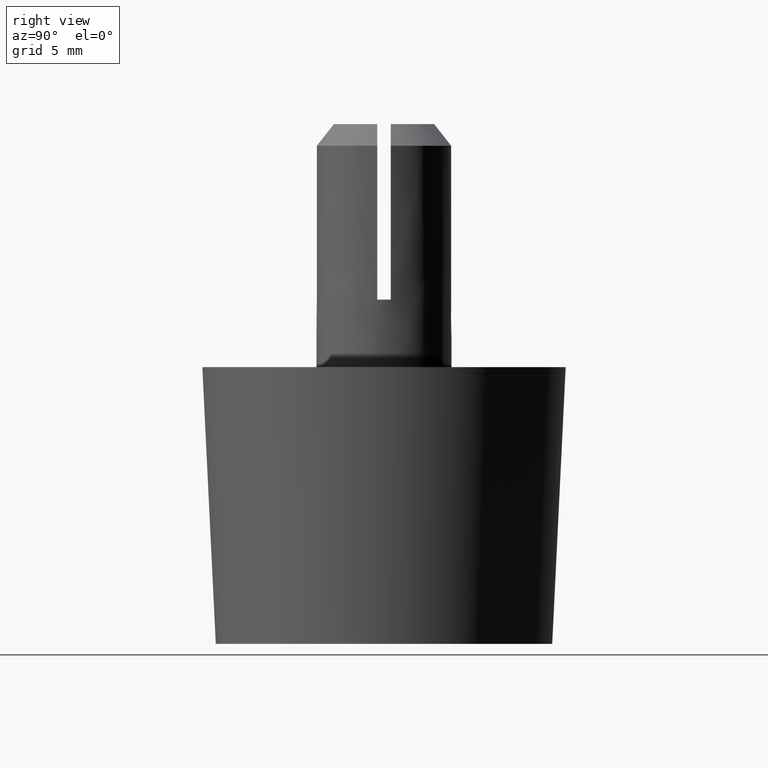
[diagram: clean part render]
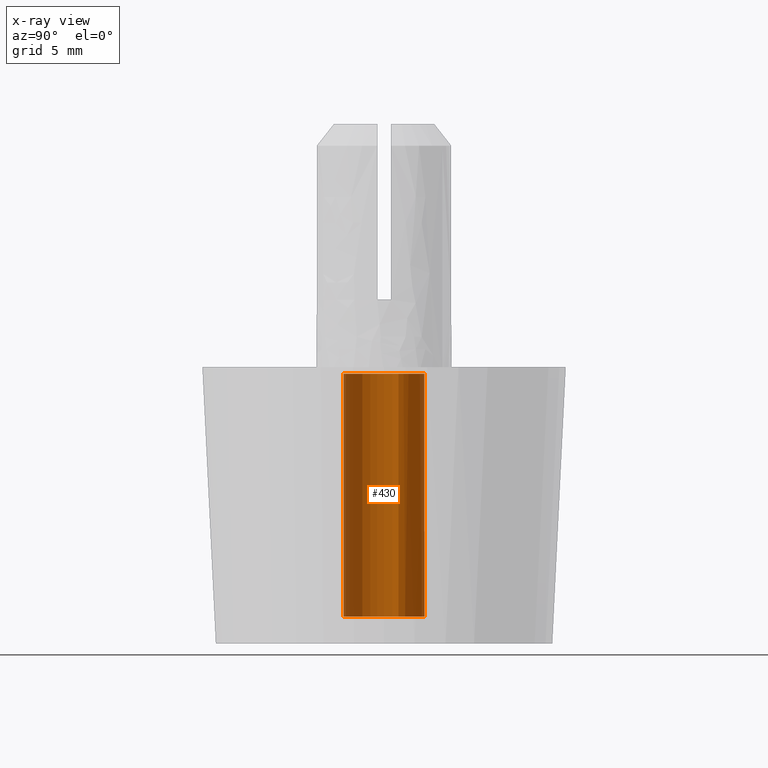
[diagram: x-ray — body ghosted, one internal face saturated and labeled with its STEP entity id]
A machine part, right view, then the same camera in x-ray: the body is ghosted and one INTERNAL B-rep face — a face not visible from any outside direction — is saturated and labeled: STEP entity #430.
In plain terms, the highlighted face is a freeform B-spline surface patch.
Its self-contained STEP definition (entity closure, byte-faithful):
#248=CARTESIAN_POINT('',(2.808430736325621,1.054853923186302,-0.499999999999999));
#249=VERTEX_POINT('',#248);
#265=CARTESIAN_POINT('',(0.183145618621069,-2.994404395264941,-0.500000000004185));
#266=VERTEX_POINT('',#265);
#280=CARTESIAN_POINT('',(0.183145618633841,-2.994404395263810,-18.500000000000000));
#281=VERTEX_POINT('',#280);
#282=CARTESIAN_POINT('',(0.183145618621069,-2.994404395264941,-0.500000000004185));
#283=CARTESIAN_POINT('',(0.183145618633841,-2.994404395263810,-18.500000000000000));
#284=QUASI_UNIFORM_CURVE('',1,(#282,#283),.UNSPECIFIED.,.F.,.U.);
#285=EDGE_CURVE('',#266,#281,#284,.T.);
#302=CARTESIAN_POINT('',(2.808430736325064,1.054853923187783,-18.500000000000000));
#303=VERTEX_POINT('',#302);
#317=CARTESIAN_POINT('',(2.808430736325621,1.054853923186302,-0.499999999999999));
#318=CARTESIAN_POINT('',(2.808430736325064,1.054853923187783,-18.500000000000000));
#319=QUASI_UNIFORM_CURVE('',1,(#317,#318),.UNSPECIFIED.,.F.,.U.);
#320=EDGE_CURVE('',#249,#303,#319,.T.);
#325=CARTESIAN_POINT('',(0.183145618604571,-2.994404395265601,-0.049999999999999));
#326=CARTESIAN_POINT('',(-2.811258776661029,-3.177550013870172,-0.049999999999999));
#327=CARTESIAN_POINT('',(-2.994404395265600,-0.183145618604571,-0.049999999999999));
#328=CARTESIAN_POINT('',(-3.177550013870171,2.811258776661029,-0.049999999999999));
#329=CARTESIAN_POINT('',(-0.183145618604571,2.994404395265600,-0.049999999999999));
#330=CARTESIAN_POINT('',(2.029108745409197,3.129711668608025,-0.049999999999999));
#331=CARTESIAN_POINT('',(2.808430736329971,1.054853923174716,-0.049999999999999));
#332=CARTESIAN_POINT('',(0.183145618604571,-2.994404395265601,-18.961250000000010));
#333=CARTESIAN_POINT('',(-2.811258776661029,-3.177550013870172,-18.961250000000007));
#334=CARTESIAN_POINT('',(-2.994404395265600,-0.183145618604571,-18.961250000000010));
#335=CARTESIAN_POINT('',(-3.177550013870171,2.811258776661029,-18.961250000000007));
#336=CARTESIAN_POINT('',(-0.183145618604571,2.994404395265600,-18.961250000000010));
#337=CARTESIAN_POINT('',(2.029108745409197,3.129711668608025,-18.961250000000014));
#338=CARTESIAN_POINT('',(2.808430736329971,1.054853923174716,-18.961250000000003));
#346=(BOUNDED_SURFACE()B_SPLINE_SURFACE(2,1,((#325,#332),(#326,#333),(#327,#334),(#328,#335),(#329,#336),(#330,#337),(#331,#338)),.UNSPECIFIED.,.F.,.F.,.U.)B_SPLINE_SURFACE_WITH_KNOTS((3,2,2,3),(2,2),(0.0,4.970562748477139,9.941125496954278,13.917575695735991),(0.0,18.911250000000010),.UNSPECIFIED.)GEOMETRIC_REPRESENTATION_ITEM()RATIONAL_B_SPLINE_SURFACE(((1.0,1.0),(0.707106781186548,0.707106781186548),(1.0,1.0),(0.707106781186548,0.707106781186548),(1.0,1.0),(0.765685424949238,0.765685424949238),(0.906274169979695,0.906274169979695)))REPRESENTATION_ITEM('')SURFACE());
#347=CARTESIAN_POINT('',(-0.354097998581884,2.979028768811363,-0.499997798027351));
#348=VERTEX_POINT('',#347);
#349=CARTESIAN_POINT('',(-0.354097998581884,2.979028768811363,-0.499997798027350));
#350=CARTESIAN_POINT('',(-0.177669961595481,2.999999649330686,-0.499997881196756));
#351=CARTESIAN_POINT('',(0.000000039905998,2.999999664272547,-0.499997971480996));
#352=CARTESIAN_POINT('',(2.077828806201767,2.999999839015786,-0.499999027344053));
#353=CARTESIAN_POINT('',(2.808430736325621,1.054853923186302,-0.499999999999999));
#361=(BOUNDED_CURVE()B_SPLINE_CURVE(2,(#349,#350,#351,#352,#353),.UNSPECIFIED.,.F.,.U.)B_SPLINE_CURVE_WITH_KNOTS((3,2,3),(0.229562737999582,0.250000000000000,0.440284170897606),.UNSPECIFIED.)CURVE()GEOMETRIC_REPRESENTATION_ITEM()RATIONAL_B_SPLINE_CURVE((0.956027272587882,0.976056258195854,1.0,0.777068226786204,0.893499554634171))REPRESENTATION_ITEM(''));
#362=EDGE_CURVE('',#348,#249,#361,.T.);
#363=ORIENTED_EDGE('',*,*,#362,.T.);
#364=ORIENTED_EDGE('',*,*,#320,.T.);
#365=CARTESIAN_POINT('',(-3.0,-3.367667E-016,-18.500000000000000));
#366=VERTEX_POINT('',#365);
#367=CARTESIAN_POINT('',(-3.0,-3.367667E-016,-18.500000000000000));
#368=CARTESIAN_POINT('',(-3.0,2.999999999999999,-18.500000000000000));
#369=CARTESIAN_POINT('',(0.0,3.0,-18.500000000000000));
#370=CARTESIAN_POINT('',(2.077828787062603,2.999999999999999,-18.499999999999996));
#371=CARTESIAN_POINT('',(2.808430736325064,1.054853923187783,-18.500000000000004));
#379=(BOUNDED_CURVE()B_SPLINE_CURVE(2,(#367,#368,#369,#370,#371),.UNSPECIFIED.,.F.,.U.)B_SPLINE_CURVE_WITH_KNOTS((3,2,3),(0.0,0.250000000000000,0.440284170897439),.UNSPECIFIED.)CURVE()GEOMETRIC_REPRESENTATION_ITEM()RATIONAL_B_SPLINE_CURVE((1.0,0.707106781186548,1.0,0.777068226786400,0.893499554633967))REPRESENTATION_ITEM(''));
#380=EDGE_CURVE('',#366,#303,#379,.T.);
#381=ORIENTED_EDGE('',*,*,#380,.F.);
#382=CARTESIAN_POINT('',(0.183145618633841,-2.994404395263810,-18.499999999999996));
#383=CARTESIAN_POINT('',(0.091658289925119,-3.000000000000000,-18.499999999999996));
#384=CARTESIAN_POINT('',(0.0,-3.0,-18.500000000000000));
#385=CARTESIAN_POINT('',(-3.0,-3.0,-18.500000000000000));
#386=CARTESIAN_POINT('',(-3.0,-3.367667E-016,-18.500000000000000));
#394=(BOUNDED_CURVE()B_SPLINE_CURVE(2,(#382,#383,#384,#385,#386),.UNSPECIFIED.,.F.,.U.)B_SPLINE_CURVE_WITH_KNOTS((3,2,3),(0.739332962238595,0.750000000000000,1.0),.UNSPECIFIED.)CURVE()GEOMETRIC_REPRESENTATION_ITEM()RATIONAL_B_SPLINE_CURVE((0.976072041665972,0.987502787899430,1.0,0.707106781186548,1.0))REPRESENTATION_ITEM(''));
#395=EDGE_CURVE('',#281,#366,#394,.T.);
#396=ORIENTED_EDGE('',*,*,#395,.F.);
#397=ORIENTED_EDGE('',*,*,#285,.F.);
#398=CARTESIAN_POINT('',(-3.0,-3.367667E-016,-0.500000000000000));
#399=VERTEX_POINT('',#398);
#400=CARTESIAN_POINT('',(0.183145618621069,-2.994404395264941,-0.500000000004186));
#401=CARTESIAN_POINT('',(0.091658289928813,-3.000000000000001,-0.500000000000000));
#402=CARTESIAN_POINT('',(0.0,-3.0,-0.500000000000000));
#403=CARTESIAN_POINT('',(-3.0,-3.0,-0.500000000000000));
#404=CARTESIAN_POINT('',(-3.0,-3.367667E-016,-0.500000000000000));
#412=(BOUNDED_CURVE()B_SPLINE_CURVE(2,(#400,#401,#402,#403,#404),.UNSPECIFIED.,.F.,.U.)B_SPLINE_CURVE_WITH_KNOTS((3,2,3),(0.739332962238170,0.750000000000000,1.0),.UNSPECIFIED.)CURVE()GEOMETRIC_REPRESENTATION_ITEM()RATIONAL_B_SPLINE_CURVE((0.976072041665062,0.987502787898932,1.0,0.707106781186548,1.0))REPRESENTATION_ITEM(''));
#413=EDGE_CURVE('',#266,#399,#412,.T.);
#414=ORIENTED_EDGE('',*,*,#413,.T.);
#415=CARTESIAN_POINT('',(-3.0,-3.367667E-016,-0.500000000000000));
#416=CARTESIAN_POINT('',(-2.999999978341055,2.664527594876145,-0.499998899013675));
#417=CARTESIAN_POINT('',(-0.354097998581884,2.979028768811363,-0.499997798027350));
#425=(BOUNDED_CURVE()B_SPLINE_CURVE(2,(#415,#416,#417),.UNSPECIFIED.,.F.,.U.)B_SPLINE_CURVE_WITH_KNOTS((3,3),(0.0,0.229562737999582),.UNSPECIFIED.)CURVE()GEOMETRIC_REPRESENTATION_ITEM()RATIONAL_B_SPLINE_CURVE((1.0,0.731050522990693,0.956027272587882))REPRESENTATION_ITEM(''));
#426=EDGE_CURVE('',#399,#348,#425,.T.);
#427=ORIENTED_EDGE('',*,*,#426,.T.);
#428=EDGE_LOOP('',(#363,#364,#381,#396,#397,#414,#427));
#429=FACE_OUTER_BOUND('',#428,.T.);
#430=ADVANCED_FACE('',(#429),#346,.T.);